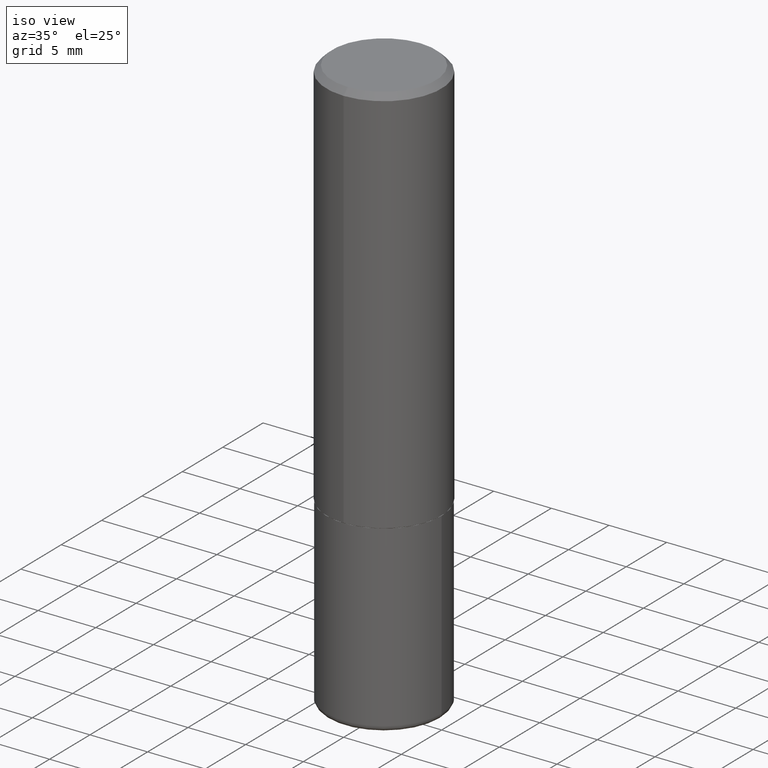
[diagram: clean part render]
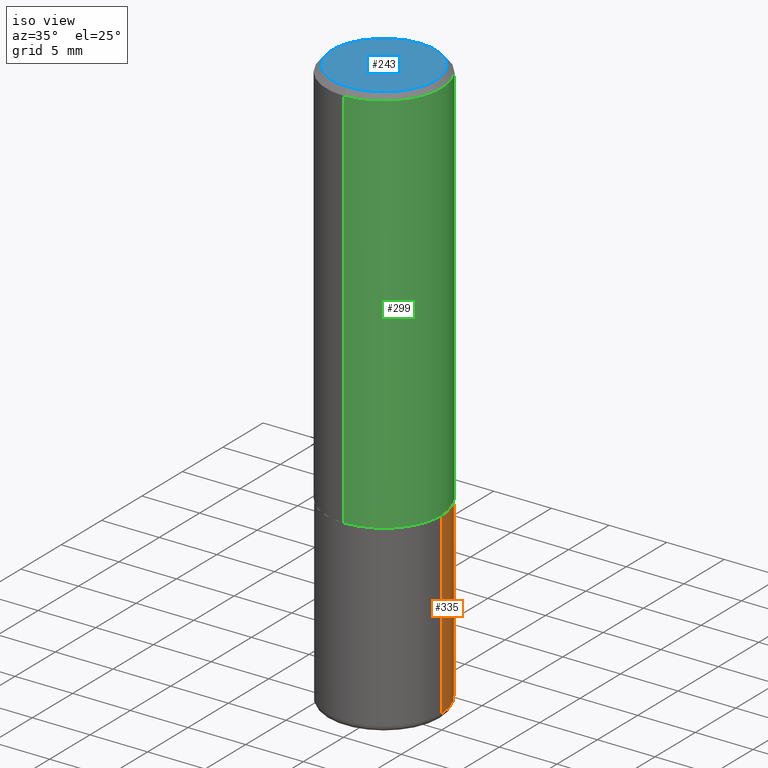
[diagram: same view with three faces highlighted in distinct colors, each labeled with its STEP entity id]
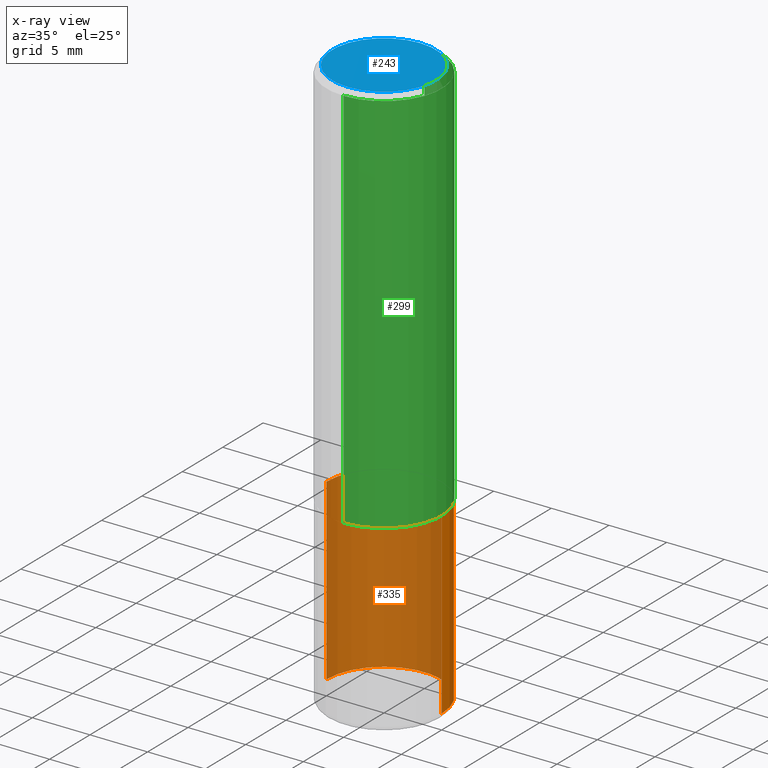
[diagram: x-ray of the same camera — body ghosted, the three highlighted faces saturated]
A machine part, iso view with three faces highlighted in distinct colors.
The next image is the same camera in x-ray (body ghosted, the three faces saturated) — at least one of them is partly hidden behind the body in this view.
Their STEP definitions:

[orange] entity #335 — the highlighted cylindrical surface (partial cylindrical patch) has radius 5 mm, axis along (-0, 0, 1).
#19 = VECTOR ( 'NONE', #331, 39.37007874015748143 ) ;
#30 = DIRECTION ( 'NONE',  ( -2.445468806185136597E-29, 3.491481338843145583E-15, 1.000000000000000000 ) ) ;
#70 = DIRECTION ( 'NONE',  ( -2.445468806185136597E-29, 3.491481338843145583E-15, 1.000000000000000000 ) ) ;
#71 = LINE ( 'NONE', #198, #19 ) ;
#75 = AXIS2_PLACEMENT_3D ( 'NONE', #296, #70, #332 ) ;
#78 = CARTESIAN_POINT ( 'NONE',  ( 0.1968500000000000527, -1.374596203102542003E-15, 9.598753983154302260E-30 ) ) ;
#88 = ORIENTED_EDGE ( 'NONE', *, *, #181, .F. ) ;
#106 = DIRECTION ( 'NONE',  ( 1.000000000000000000, -6.982962677686266711E-15, 0.000000000000000000 ) ) ;
#112 = EDGE_CURVE ( 'NONE', #208, #199, #71, .T. ) ;
#166 = DIRECTION ( 'NONE',  ( -2.445468806185136877E-29, 3.491481338843145188E-15, 1.000000000000000000 ) ) ;
#175 = ORIENTED_EDGE ( 'NONE', *, *, #292, .T. ) ;
#176 = CARTESIAN_POINT ( 'NONE',  ( -0.1968500000000000527, -5.405495457793762735E-15, -1.948799999999999644 ) ) ;
#181 = EDGE_CURVE ( 'NONE', #401, #367, #406, .T. ) ;
#194 = CIRCLE ( 'NONE', #394, 0.1968500000000000527 ) ;
#195 = CIRCLE ( 'NONE', #251, 0.1968500000000000527 ) ;
#198 = CARTESIAN_POINT ( 'NONE',  ( -0.1968500000000000527, 1.398703375343757590E-15, -9.682923725166785079E-30 ) ) ;
#199 = VERTEX_POINT ( 'NONE', #308 ) ;
#205 = ORIENTED_EDGE ( 'NONE', *, *, #112, .T. ) ;
#206 = CARTESIAN_POINT ( 'NONE',  ( 0.1968500000000000527, -8.178795036240062131E-15, -1.948799999999999644 ) ) ;
#208 = VERTEX_POINT ( 'NONE', #176 ) ;
#228 = CARTESIAN_POINT ( 'NONE',  ( 3.273504543959423913E-29, -4.673696920175434737E-15, -1.338600000000000012 ) ) ;
#230 = EDGE_LOOP ( 'NONE', ( #175, #205, #264, #88 ) ) ;
#251 = AXIS2_PLACEMENT_3D ( 'NONE', #228, #402, #106 ) ;
#264 = ORIENTED_EDGE ( 'NONE', *, *, #355, .F. ) ;
#268 = FACE_OUTER_BOUND ( 'NONE', #230, .T. ) ;
#282 = DIRECTION ( 'NONE',  ( 1.000000000000000000, -6.982962677686266711E-15, 0.000000000000000000 ) ) ;
#292 = EDGE_CURVE ( 'NONE', #401, #208, #194, .T. ) ;
#296 = CARTESIAN_POINT ( 'NONE',  ( 0.000000000000000000, 0.000000000000000000, 0.000000000000000000 ) ) ;
#308 = CARTESIAN_POINT ( 'NONE',  ( -0.1968500000000000527, -4.340244501312719447E-15, -1.338600000000000012 ) ) ;
#331 = DIRECTION ( 'NONE',  ( -2.445468806185136877E-29, 3.491481338843145188E-15, 1.000000000000000000 ) ) ;
#332 = DIRECTION ( 'NONE',  ( 1.000000000000000000, -6.982962677686266711E-15, 4.876176775795935793E-29 ) ) ;
#335 = ADVANCED_FACE ( 'NONE', ( #268 ), #396, .T. ) ;
#355 = EDGE_CURVE ( 'NONE', #367, #199, #195, .T. ) ;
#367 = VERTEX_POINT ( 'NONE', #405 ) ;
#373 = VECTOR ( 'NONE', #166, 39.37007874015748143 ) ;
#394 = AXIS2_PLACEMENT_3D ( 'NONE', #413, #30, #282 ) ;
#396 = CYLINDRICAL_SURFACE ( 'NONE', #75, 0.1968500000000000527 ) ;
#401 = VERTEX_POINT ( 'NONE', #206 ) ;
#402 = DIRECTION ( 'NONE',  ( -2.445468806185136597E-29, 3.491481338843145583E-15, 1.000000000000000000 ) ) ;
#405 = CARTESIAN_POINT ( 'NONE',  ( 0.1968500000000000527, -6.048293123277976345E-15, -1.338600000000000012 ) ) ;
#406 = LINE ( 'NONE', #78, #373 ) ;
#413 = CARTESIAN_POINT ( 'NONE',  ( 4.765729609493593976E-29, -6.804198833137520522E-15, -1.948799999999999644 ) ) ;

[blue] entity #243 — the highlighted planar face has unit normal (0, -0, -1).
#23 = CIRCLE ( 'NONE', #241, 0.1768499999999998129 ) ;
#25 = FACE_OUTER_BOUND ( 'NONE', #69, .T. ) ;
#47 = DIRECTION ( 'NONE',  ( -6.982962677686265922E-15, -1.000000000000000000, 3.489961076653892857E-15 ) ) ;
#51 = AXIS2_PLACEMENT_3D ( 'NONE', #207, #162, #47 ) ;
#59 = ORIENTED_EDGE ( 'NONE', *, *, #62, .T. ) ;
#62 = EDGE_CURVE ( 'NONE', #109, #164, #326, .T. ) ;
#69 = EDGE_LOOP ( 'NONE', ( #59, #114 ) ) ;
#87 = CARTESIAN_POINT ( 'NONE',  ( 1.234936949548814815E-15, 0.1768499999999998129, -5.127554895828650430E-16 ) ) ;
#104 = EDGE_CURVE ( 'NONE', #164, #109, #23, .T. ) ;
#109 = VERTEX_POINT ( 'NONE', #329 ) ;
#114 = ORIENTED_EDGE ( 'NONE', *, *, #104, .T. ) ;
#134 = DIRECTION ( 'NONE',  ( -2.446530399597921291E-29, 3.489961076653893251E-15, 1.000000000000000000 ) ) ;
#162 = DIRECTION ( 'NONE',  ( -2.446530399597921291E-29, 3.489961076653893251E-15, 1.000000000000000000 ) ) ;
#164 = VERTEX_POINT ( 'NONE', #263 ) ;
#183 = DIRECTION ( 'NONE',  ( 2.446530399597921291E-29, -3.489961076653892857E-15, -1.000000000000000000 ) ) ;
#207 = CARTESIAN_POINT ( 'NONE',  ( -5.110514626656973596E-45, 7.290118745973661303E-31, 2.088882536467508497E-16 ) ) ;
#225 = AXIS2_PLACEMENT_3D ( 'NONE', #87, #183, #381 ) ;
#241 = AXIS2_PLACEMENT_3D ( 'NONE', #368, #134, #300 ) ;
#243 = ADVANCED_FACE ( 'NONE', ( #25 ), #279, .F. ) ;
#263 = CARTESIAN_POINT ( 'NONE',  ( -1.281884050883609900E-15, -0.1768499999999998129, 8.260878700529913052E-16 ) ) ;
#279 = PLANE ( 'NONE',  #225 ) ;
#300 = DIRECTION ( 'NONE',  ( -6.982962677686265922E-15, -1.000000000000000000, 3.489961076653892857E-15 ) ) ;
#326 = CIRCLE ( 'NONE', #51, 0.1768499999999998129 ) ;
#329 = CARTESIAN_POINT ( 'NONE',  ( 1.304766576325678705E-15, 0.1768499999999998129, -4.083113627594895072E-16 ) ) ;
#368 = CARTESIAN_POINT ( 'NONE',  ( -5.110514626656973596E-45, 7.290118745973661303E-31, 2.088882536467508497E-16 ) ) ;
#381 = DIRECTION ( 'NONE',  ( 6.982962677686265922E-15, 1.000000000000000000, -3.489961076653892857E-15 ) ) ;

[green] entity #299 — the highlighted cylindrical surface (partial cylindrical patch) has radius 5 mm, axis along (-0, 0, 1).
#4 = AXIS2_PLACEMENT_3D ( 'NONE', #159, #100, #301 ) ;
#18 = VERTEX_POINT ( 'NONE', #142 ) ;
#22 = ORIENTED_EDGE ( 'NONE', *, *, #289, .F. ) ;
#35 = EDGE_CURVE ( 'NONE', #218, #98, #285, .T. ) ;
#37 = CIRCLE ( 'NONE', #384, 0.1968500000000000527 ) ;
#43 = VECTOR ( 'NONE', #209, 39.37007874015748143 ) ;
#48 = ORIENTED_EDGE ( 'NONE', *, *, #35, .T. ) ;
#84 = EDGE_LOOP ( 'NONE', ( #48, #267, #22, #362 ) ) ;
#90 = CARTESIAN_POINT ( 'NONE',  ( -1.374596203102509659E-15, -0.1968500000000048267, -1.337599999999999234 ) ) ;
#93 = VECTOR ( 'NONE', #377, 39.37007874015748143 ) ;
#98 = VERTEX_POINT ( 'NONE', #196 ) ;
#100 = DIRECTION ( 'NONE',  ( -2.446530399597921291E-29, 3.489961076653893251E-15, 1.000000000000000000 ) ) ;
#113 = CARTESIAN_POINT ( 'NONE',  ( 0.000000000000000000, 0.000000000000000000, 0.000000000000000000 ) ) ;
#119 = CARTESIAN_POINT ( 'NONE',  ( -1.350489030861325626E-15, -0.1968500000000001082, -0.01999999999999935510 ) ) ;
#121 = CARTESIAN_POINT ( 'NONE',  ( 1.398703375343757788E-15, 0.1968500000000001082, -6.869988379393193333E-16 ) ) ;
#142 = CARTESIAN_POINT ( 'NONE',  ( 1.374596203102542200E-15, 0.1968499999999999694, -0.02000000000000072900 ) ) ;
#159 = CARTESIAN_POINT ( 'NONE',  ( 3.272479062502179524E-29, -4.668171936132247256E-15, -1.337599999999999900 ) ) ;
#171 = LINE ( 'NONE', #217, #43 ) ;
#188 = EDGE_CURVE ( 'NONE', #218, #214, #171, .T. ) ;
#196 = CARTESIAN_POINT ( 'NONE',  ( 1.398703375343774551E-15, 0.1968499999999954730, -1.337600000000000788 ) ) ;
#209 = DIRECTION ( 'NONE',  ( -2.446530399597921291E-29, 3.489961076653892857E-15, 1.000000000000000000 ) ) ;
#214 = VERTEX_POINT ( 'NONE', #119 ) ;
#217 = CARTESIAN_POINT ( 'NONE',  ( -1.374596203102542200E-15, -0.1968500000000001082, 6.869988379393193333E-16 ) ) ;
#218 = VERTEX_POINT ( 'NONE', #90 ) ;
#240 = DIRECTION ( 'NONE',  ( -6.982962677686265133E-15, -1.000000000000000000, 3.491137977679279029E-15 ) ) ;
#247 = DIRECTION ( 'NONE',  ( -2.446530399597921291E-29, 3.489961076653893251E-15, 1.000000000000000000 ) ) ;
#259 = AXIS2_PLACEMENT_3D ( 'NONE', #113, #247, #272 ) ;
#267 = ORIENTED_EDGE ( 'NONE', *, *, #407, .T. ) ;
#272 = DIRECTION ( 'NONE',  ( -6.982962677686265922E-15, -1.000000000000000000, 3.489961076653893646E-15 ) ) ;
#285 = CIRCLE ( 'NONE', #4, 0.1968500000000001360 ) ;
#289 = EDGE_CURVE ( 'NONE', #214, #18, #37, .T. ) ;
#299 = ADVANCED_FACE ( 'NONE', ( #416 ), #375, .T. ) ;
#301 = DIRECTION ( 'NONE',  ( -6.982962677686265922E-15, -1.000000000000000000, 4.163344669033672479E-15 ) ) ;
#309 = LINE ( 'NONE', #121, #93 ) ;
#310 = CARTESIAN_POINT ( 'NONE',  ( 4.893060799195852986E-31, -6.979922153307800258E-17, -0.02000000000000004205 ) ) ;
#320 = DIRECTION ( 'NONE',  ( -2.446530399597921291E-29, 3.489961076653893251E-15, 1.000000000000000000 ) ) ;
#362 = ORIENTED_EDGE ( 'NONE', *, *, #188, .F. ) ;
#375 = CYLINDRICAL_SURFACE ( 'NONE', #259, 0.1968500000000001082 ) ;
#377 = DIRECTION ( 'NONE',  ( -2.446530399597921291E-29, 3.489961076653892857E-15, 1.000000000000000000 ) ) ;
#384 = AXIS2_PLACEMENT_3D ( 'NONE', #310, #320, #240 ) ;
#407 = EDGE_CURVE ( 'NONE', #98, #18, #309, .T. ) ;
#416 = FACE_OUTER_BOUND ( 'NONE', #84, .T. ) ;